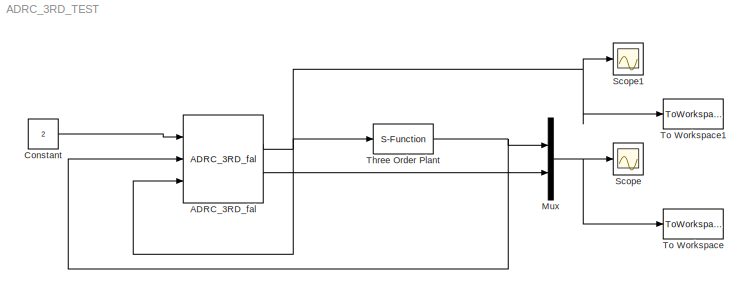
MODEL ADRC_3RD_TEST
KIND model
BLOCK [Reference] ADRC_3RD_fal  REF=ADRC/ADRC/ADRC_3rd/ADRC_3RD_fal
  ESO = [100,60,100,400,0.0001]
  FunctionWithSeparateData = off
  GeneratePreprocessorConditionals = off
  NLSEF = [80,20,5,0.01]
  Ports = [3, 2]
  RTWMemSecDataConstants = Inherit from model
  RTWMemSecDataInternal = Inherit from model
  RTWMemSecDataParameters = Inherit from model
  RTWMemSecFuncExecute = Inherit from model
  RTWMemSecFuncInitTerm = Inherit from model
  SID = 48
  ShowPortLabels = FromPortIcon
  SourceBlock = ADRC/ADRC/ADRC_3rd/ADRC_3RD_fal
  SystemSampleTime = -1
  TD = [0.5,0.01]
  b0 = 1
  h = 0.01
BLOCK [Constant] Constant
  SID = 3
  Value = 2
BLOCK [Mux] Mux
  DisplayOption = bar
  Inputs = 2
  Ports = [2, 1]
  SID = 23
BLOCK [Scope] Scope
  DataFormat = Array
  Floating = off
  LimitDataPoints = off
  NumInputPorts = 1
  Ports = [1]
  SID = 4
  SampleTime = 0
  SaveToWorkspace = on
  TimeRange = 20
  YMax = 2.5
  YMin = 1.35
BLOCK [Scope] Scope1
  DataFormat = Array
  Floating = off
  NumInputPorts = 1
  Ports = [1]
  SID = 5
  SampleTime = 0
  SaveName = ScopeData1
  SaveToWorkspace = on
  TimeRange = 50
  YMax = 2.1
  YMin = 1.8
BLOCK [S-Function] Three Order Plant
  EnableBusSupport = off
  FunctionName = Plant3
  Ports = [1, 1]
  SID = 34
BLOCK [ToWorkspace] To Workspace
  MaxDataPoints = inf
  Ports = [1]
  SID = 24
  SampleTime = 1
  SaveFormat = Array
  VariableName = output
BLOCK [ToWorkspace] To Workspace1
  MaxDataPoints = inf
  Ports = [1]
  SID = 25
  SampleTime = 1
  SaveFormat = Array
  VariableName = in_control
NET ADRC_3RD_fal:1 -> ADRC_3RD_fal:3, Scope1:1, Three Order Plant:1, To Workspace1:1
LINE ADRC_3RD_fal:2 -> Mux:2
LINE Constant:1 -> ADRC_3RD_fal:1
NET Mux:1 -> Scope:1, To Workspace:1
NET Three Order Plant:1 -> ADRC_3RD_fal:2, Mux:1
note: NET lines group one-source signal fan-out (src -> all destinations, sorted); 1:1 wires keep LINE
